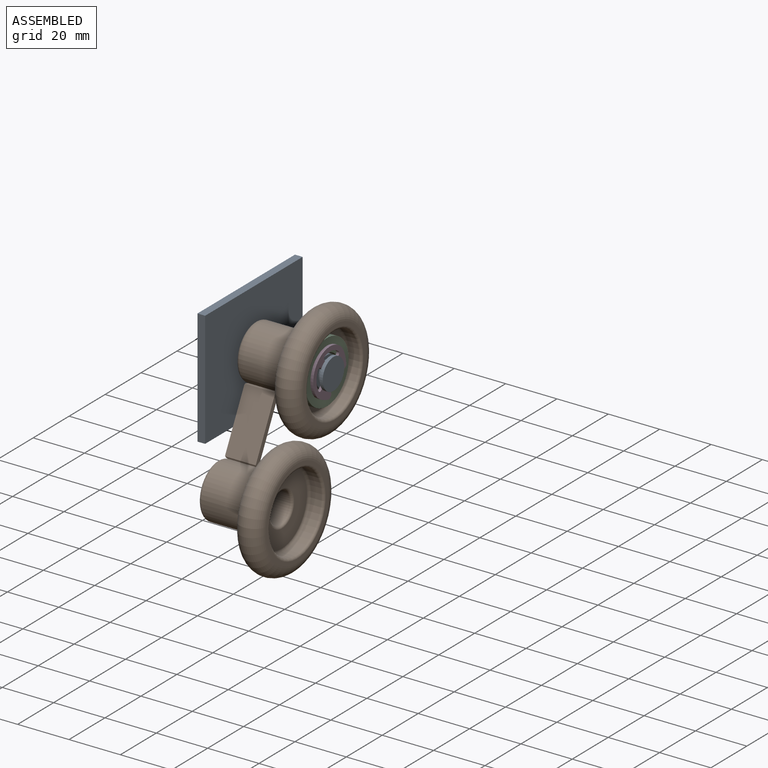
[diagram: assembled view]
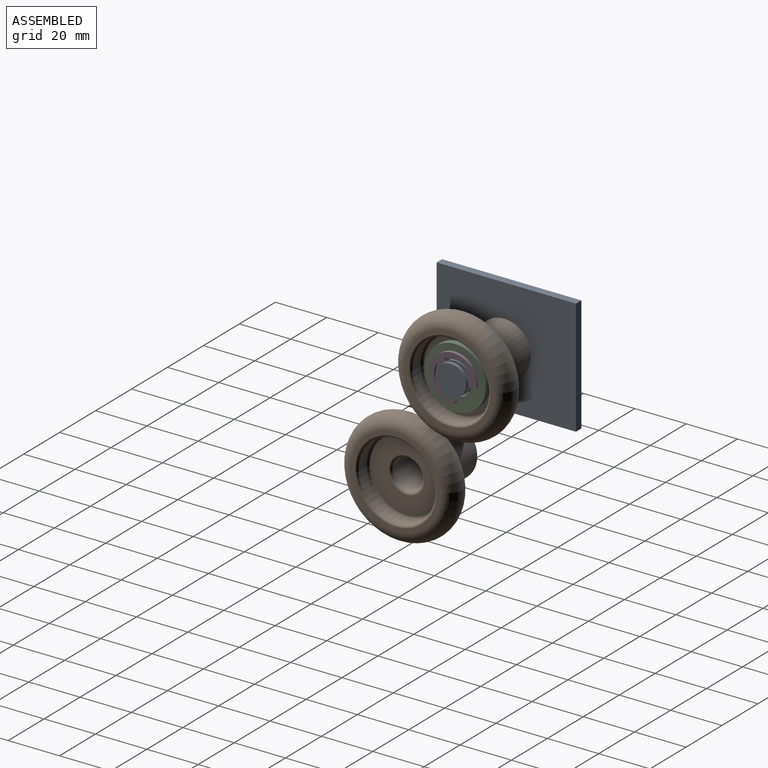
[diagram: assembled view, second angle]
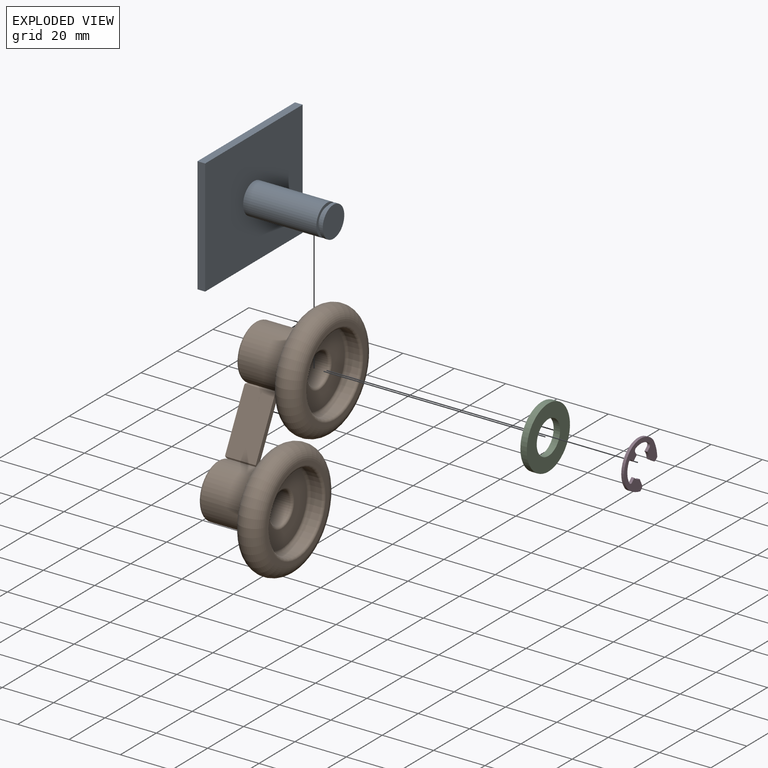
[diagram: exploded view]
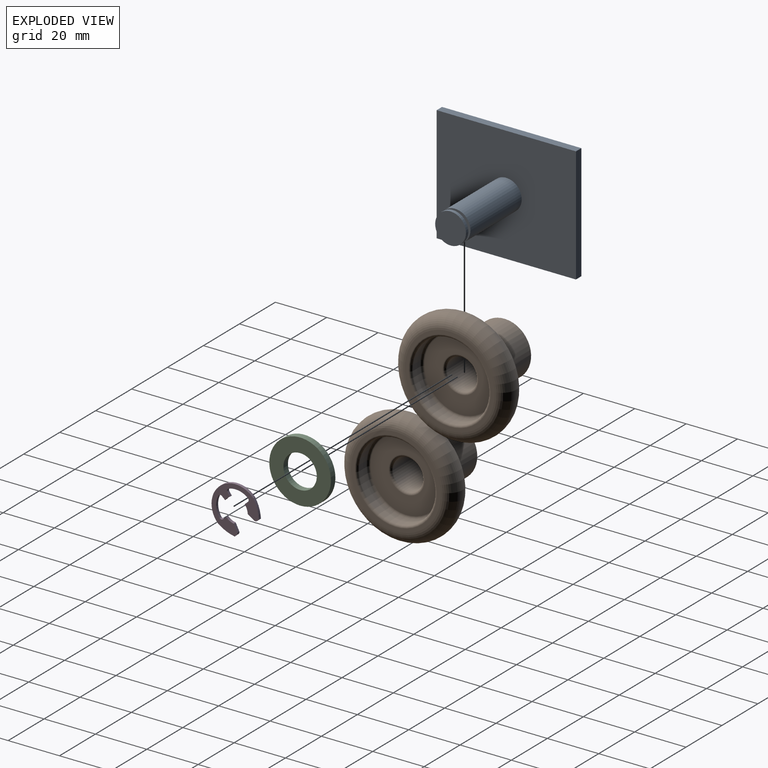
[diagram: exploded view, second angle]
ASSEMBLY  parts=4 mates=3
PART A: 12 faces, bbox 34x54.3x45.1 mm
  f0: cylinder r=6mm len=28.5mm, axis (-1,0,0), area 1074.4mm2, adj f6,f9
  f1: plane 45.1x3mm, normal (0,1,0), area 135.3mm2, adj f2,f4,f5,f6
  f2: plane 54.25x3mm, normal (0,0,-1), area 162.8mm2, adj f1,f3,f5,f6
  f3: plane 45.1x3mm, normal (0,-1,0), area 135.3mm2, adj f2,f4,f5,f6
  f4: plane 54.25x3mm, normal (0,0,1), area 162.8mm2, adj f1,f3,f5,f6
  f5: plane 54.25x45.1mm, normal (-1,0,0), area 2446.8mm2, adj f1,f2,f3,f4
  f6: plane 54.25x45.1mm, normal (1,0,0), area 2333.7mm2, adj f0,f1,f2,f3,f4
  f7: cylinder r=4.8mm len=9.6mm, axis (-1,0,0), area 36.2mm2, adj f8,f9
  f8: plane 12x12mm, normal (-1,0,0), area 40.7mm2, adj f7,f11
  f9: plane 12x12mm, normal (1,0,0), area 40.7mm2, adj f0,f7
  f10: plane 12x12mm, normal (1,0,0), area 113.1mm2, adj f11
  f11: cylinder r=6mm len=12mm, axis (-1,0,0), area 49mm2, adj f8,f10
PART B: 324 faces, bbox 31x48.7x94.7 mm
  f0: cylinder r=10.5mm len=21mm, axis (-1,0,0), area 1126.6mm2, adj f32,f37,f38,f39,f40,f41,f42,f43
  f1: plane 19x19mm, normal (-1,0,0), area 129.6mm2, adj f32,f33
  f2: cylinder r=6mm len=23mm, axis (-1,0,0), area 867.1mm2, adj f33,f34
  f3: plane 28x28mm, normal (1,0,0), area 461.8mm2, adj f34,f35
  f4: cylinder r=15mm len=30mm, axis (-1,0,0), area 377mm2, adj f35,f36
  f5: plane 35x35mm, normal (1,0,0), area 157.9mm2, adj f6,f36
  f6: torus R=17.5mm, axis (-1,0,0), area 2041.3mm2, adj f5,f7
  f7: plane 35x35mm, normal (-1,0,0), area 360.7mm2, adj f6,f37,f38,f39,f40,f41,f42,f43
  f8: plane 3.87x2.38mm, normal (0,-1,0), area 4.1mm2, adj f150,f154,f155,f156
  f9: plane 3.87x2.38mm, normal (0,1,0), area 4.1mm2, adj f143,f144,f145,f146
  f10: plane 5.67x3.49mm, normal (-0.85,0,0.52), area 10mm2, adj f145,f149,f150,f151
  f11: plane 2.74x2.74mm, normal (0,-0.71,0.71), area 4.1mm2, adj f136,f140,f141,f142
  f12: plane 2.74x2.74mm, normal (0,0.71,-0.71), area 4.1mm2, adj f129,f130,f131,f132
  f13: plane 5.07x5.07mm, normal (-0.85,0.37,0.37), area 10mm2, adj f131,f135,f136,f137
  f14: plane 3.87x2.38mm, normal (0,0,1), area 4.1mm2, adj f122,f126,f127,f128
  f15: plane 3.87x2.38mm, normal (0,0,-1), area 4.1mm2, adj f115,f116,f117,f118
  f16: plane 5.67x3.49mm, normal (-0.85,0.52,0), area 10mm2, adj f117,f121,f122,f123
  f17: plane 2.74x2.74mm, normal (0,0.71,0.71), area 4.1mm2, adj f108,f112,f113,f114
  f18: plane 2.74x2.74mm, normal (0,-0.71,-0.71), area 4.1mm2, adj f101,f102,f103,f104
  f19: plane 5.07x5.07mm, normal (-0.85,0.37,-0.37), area 10mm2, adj f103,f107,f108,f109
  f20: plane 3.87x2.38mm, normal (0,1,0), area 4.1mm2, adj f94,f98,f99,f100
  f21: plane 3.87x2.38mm, normal (0,-1,0), area 4.1mm2, adj f87,f88,f89,f90
  f22: plane 5.67x3.49mm, normal (-0.85,0,-0.52), area 10mm2, adj f89,f93,f94,f95
  f23: plane 2.74x2.74mm, normal (0,0.71,-0.71), area 4.1mm2, adj f80,f84,f85,f86
  f24: plane 2.74x2.74mm, normal (0,-0.71,0.71), area 4.1mm2, adj f73,f74,f75,f76
  f25: plane 5.07x5.07mm, normal (-0.85,-0.37,-0.37), area 10mm2, adj f75,f79,f80,f81
  f26: plane 3.87x2.38mm, normal (0,0,-1), area 4.1mm2, adj f66,f70,f71,f72
  f27: plane 3.87x2.38mm, normal (0,0,1), area 4.1mm2, adj f59,f60,f61,f62
  f28: plane 5.67x3.49mm, normal (-0.85,-0.52,0), area 10mm2, adj f61,f65,f66,f67
  f29: plane 2.74x2.74mm, normal (0,-0.71,-0.71), area 4.1mm2, adj f52,f56,f57,f58
  f30: plane 2.74x2.74mm, normal (0,0.71,0.71), area 4.1mm2, adj f45,f46,f47,f48
  f31: plane 5.07x5.07mm, normal (-0.85,-0.37,0.37), area 10mm2, adj f47,f51,f52,f53
  f32: torus R=9.5mm, axis (1,0,0), area 100mm2, adj f0,f1,f322
  f33: torus R=7mm, axis (1,0,0), area 62.8mm2, adj f1,f2
  f34: torus R=7mm, axis (-1,0,0), area 62.8mm2, adj f2,f3
  f35: torus R=14mm, axis (-1,0,0), area 144.5mm2, adj f3,f4
  f36: torus R=16mm, axis (-1,0,0), area 151.6mm2, adj f4,f5
  f37: torus R=12.5mm, axis (1,0,0), area 17.1mm2, adj f0,f7,f45,f156
  f38: torus R=12.5mm, axis (1,0,0), area 17.1mm2, adj f0,f7,f58,f59
  f39: torus R=12.5mm, axis (1,0,0), area 17.1mm2, adj f0,f7,f72,f73
  f40: torus R=12.5mm, axis (1,0,0), area 17.1mm2, adj f0,f7,f86,f87
  f41: torus R=12.5mm, axis (1,0,0), area 17.1mm2, adj f0,f7,f100,f101
  f42: torus R=12.5mm, axis (1,0,0), area 17.1mm2, adj f0,f7,f114,f115
  f43: torus R=12.5mm, axis (1,0,0), area 17.1mm2, adj f0,f7,f128,f129
  f44: torus R=12.5mm, axis (1,0,0), area 17.1mm2, adj f0,f7,f142,f143
  f45: bspline ~2.45x2.06mm, area 2.1mm2, adj f30,f37,f46,f48
  f46: cylinder r=0.5mm len=0.88mm, axis (-1,0,0), area 0.6mm2, adj f0,f30,f45,f49
  f47: cylinder r=0.5mm len=4.55mm, axis (-0.52,0.6,-0.6), area 4.6mm2, adj f30,f31,f49,f50
  f48: cylinder r=0.5mm len=2.02mm, axis (0,0.71,-0.71), area 1.9mm2, adj f7,f30,f45,f50
  f49: bspline ~1.33x0.98mm, area 0.7mm2, adj f0,f46,f47,f51
  f50: bspline ~2.31x1.43mm, area 1.1mm2, adj f7,f47,f48,f53
  f51: bspline ~1.2x1.2mm, area 0.7mm2, adj f0,f31,f49,f54
  f52: cylinder r=0.5mm len=4.55mm, axis (0.52,-0.6,0.6), area 4.6mm2, adj f29,f31,f54,f55
  f53: cylinder r=0.5mm len=1.25mm, axis (0,-0.71,-0.71), area 0.4mm2, adj f7,f31,f50,f55
  f54: bspline ~1.44x0.93mm, area 0.7mm2, adj f0,f51,f52,f56
  f55: bspline ~2.06x1.17mm, area 1.1mm2, adj f7,f52,f53,f57
  f56: cylinder r=0.5mm len=0.88mm, axis (-1,0,0), area 0.6mm2, adj f0,f29,f54,f58
  f57: cylinder r=0.5mm len=2.02mm, axis (0,-0.71,0.71), area 1.9mm2, adj f7,f29,f55,f58
  f58: bspline ~2.45x2.06mm, area 2.1mm2, adj f29,f38,f56,f57
  f59: bspline ~2.45x2.13mm, area 2.1mm2, adj f27,f38,f60,f62
  f60: cylinder r=0.5mm len=0.88mm, axis (-1,0,0), area 0.6mm2, adj f0,f27,f59,f63
  f61: cylinder r=0.5mm len=5.93mm, axis (-0.52,0.85,0), area 4.6mm2, adj f27,f28,f63,f64
  f62: cylinder r=0.5mm len=2.36mm, axis (0,1,0), area 1.9mm2, adj f7,f27,f59,f64
  f63: bspline ~1.33x1.15mm, area 0.7mm2, adj f0,f60,f61,f65
  f64: bspline ~2.24x1.04mm, area 1.1mm2, adj f7,f61,f62,f67
  f65: bspline ~1.5x0.44mm, area 0.7mm2, adj f0,f28,f63,f68
  f66: cylinder r=0.5mm len=5.93mm, axis (0.52,-0.85,0), area 4.6mm2, adj f26,f28,f68,f69
  f67: cylinder r=0.5mm len=1.5mm, axis (0,0,-1), area 0.4mm2, adj f7,f28,f64,f69
  f68: bspline ~1.44x1.03mm, area 0.7mm2, adj f0,f65,f66,f70
  f69: bspline ~2.24x1mm, area 1.1mm2, adj f7,f66,f67,f71
  f70: cylinder r=0.5mm len=0.88mm, axis (-1,0,0), area 0.6mm2, adj f0,f26,f68,f72
  f71: cylinder r=0.5mm len=2.36mm, axis (0,-1,0), area 1.9mm2, adj f7,f26,f69,f72
  f72: bspline ~2.47x2.45mm, area 2.1mm2, adj f26,f39,f70,f71
  f73: bspline ~2.45x2.06mm, area 2.1mm2, adj f24,f39,f74,f76
  f74: cylinder r=0.5mm len=0.88mm, axis (-1,0,0), area 0.6mm2, adj f0,f24,f73,f77
  f75: cylinder r=0.5mm len=4.55mm, axis (-0.52,0.6,0.6), area 4.6mm2, adj f24,f25,f77,f78
  f76: cylinder r=0.5mm len=2.02mm, axis (0,0.71,0.71), area 1.9mm2, adj f7,f24,f73,f78
  f77: bspline ~1.33x0.98mm, area 0.7mm2, adj f0,f74,f75,f79
  f78: bspline ~2.31x1.43mm, area 1.1mm2, adj f7,f75,f76,f81
  f79: bspline ~1.2x1.2mm, area 0.7mm2, adj f0,f25,f77,f82
  f80: cylinder r=0.5mm len=4.55mm, axis (0.52,-0.6,-0.6), area 4.6mm2, adj f23,f25,f82,f83
  f81: cylinder r=0.5mm len=1.25mm, axis (0,0.71,-0.71), area 0.4mm2, adj f7,f25,f78,f83
  f82: bspline ~1.44x0.93mm, area 0.7mm2, adj f0,f79,f80,f84
  f83: bspline ~2.06x1.17mm, area 1.1mm2, adj f7,f80,f81,f85
  f84: cylinder r=0.5mm len=0.88mm, axis (-1,0,0), area 0.6mm2, adj f0,f23,f82,f86
  f85: cylinder r=0.5mm len=2.02mm, axis (0,-0.71,-0.71), area 1.9mm2, adj f7,f23,f83,f86
  f86: bspline ~2.45x2.06mm, area 2.1mm2, adj f23,f40,f84,f85
  f87: bspline ~2.45x2.13mm, area 2.1mm2, adj f21,f40,f88,f90
  f88: cylinder r=0.5mm len=0.88mm, axis (-1,0,0), area 0.6mm2, adj f0,f21,f87,f91
  f89: cylinder r=0.5mm len=5.93mm, axis (-0.52,0,0.85), area 4.6mm2, adj f21,f22,f91,f92
  f90: cylinder r=0.5mm len=2.36mm, axis (0,0,1), area 1.9mm2, adj f7,f21,f87,f92
  f91: bspline ~1.33x1.15mm, area 0.7mm2, adj f0,f88,f89,f93
  f92: bspline ~2.24x1.04mm, area 1.1mm2, adj f7,f89,f90,f95
  f93: bspline ~1.5x0.44mm, area 0.7mm2, adj f0,f22,f91,f96
  f94: cylinder r=0.5mm len=5.93mm, axis (0.52,0,-0.85), area 4.6mm2, adj f20,f22,f96,f97
  f95: cylinder r=0.5mm len=1.5mm, axis (0,1,0), area 0.4mm2, adj f7,f22,f92,f97
  f96: bspline ~1.44x1.03mm, area 0.7mm2, adj f0,f93,f94,f98
  f97: bspline ~2.24x1mm, area 1.1mm2, adj f7,f94,f95,f99
  f98: cylinder r=0.5mm len=0.88mm, axis (-1,0,0), area 0.6mm2, adj f0,f20,f96,f100
  f99: cylinder r=0.5mm len=2.36mm, axis (0,0,-1), area 1.9mm2, adj f7,f20,f97,f100
  f100: bspline ~2.47x2.45mm, area 2.1mm2, adj f20,f41,f98,f99
  f101: bspline ~2.45x2.06mm, area 2.1mm2, adj f18,f41,f102,f104
  f102: cylinder r=0.5mm len=0.88mm, axis (-1,0,0), area 0.6mm2, adj f0,f18,f101,f105
  f103: cylinder r=0.5mm len=4.55mm, axis (-0.52,-0.6,0.6), area 4.6mm2, adj f18,f19,f105,f106
  f104: cylinder r=0.5mm len=2.02mm, axis (0,-0.71,0.71), area 1.9mm2, adj f7,f18,f101,f106
  f105: bspline ~1.33x0.98mm, area 0.7mm2, adj f0,f102,f103,f107
  f106: bspline ~2.31x1.43mm, area 1.1mm2, adj f7,f103,f104,f109
  f107: bspline ~1.2x1.2mm, area 0.7mm2, adj f0,f19,f105,f110
  f108: cylinder r=0.5mm len=4.55mm, axis (0.52,0.6,-0.6), area 4.6mm2, adj f17,f19,f110,f111
  f109: cylinder r=0.5mm len=1.25mm, axis (0,0.71,0.71), area 0.4mm2, adj f7,f19,f106,f111
  f110: bspline ~1.44x0.93mm, area 0.7mm2, adj f0,f107,f108,f112
  f111: bspline ~2.06x1.17mm, area 1.1mm2, adj f7,f108,f109,f113
  f112: cylinder r=0.5mm len=0.88mm, axis (-1,0,0), area 0.6mm2, adj f0,f17,f110,f114
  f113: cylinder r=0.5mm len=2.02mm, axis (0,0.71,-0.71), area 1.9mm2, adj f7,f17,f111,f114
  f114: bspline ~2.45x2.06mm, area 2.1mm2, adj f17,f42,f112,f113
  f115: bspline ~2.45x2.13mm, area 2.1mm2, adj f15,f42,f116,f118
  f116: cylinder r=0.5mm len=0.88mm, axis (-1,0,0), area 0.6mm2, adj f0,f15,f115,f119
  f117: cylinder r=0.5mm len=5.93mm, axis (-0.52,-0.85,0), area 4.6mm2, adj f15,f16,f119,f120
  f118: cylinder r=0.5mm len=2.36mm, axis (0,-1,0), area 1.9mm2, adj f7,f15,f115,f120
  f119: bspline ~1.33x1.15mm, area 0.7mm2, adj f0,f116,f117,f121
  f120: bspline ~2.24x1.04mm, area 1.1mm2, adj f7,f117,f118,f123
  f121: bspline ~1.5x0.44mm, area 0.7mm2, adj f0,f16,f119,f124
  f122: cylinder r=0.5mm len=5.93mm, axis (0.52,0.85,0), area 4.6mm2, adj f14,f16,f124,f125
  f123: cylinder r=0.5mm len=1.5mm, axis (0,0,1), area 0.4mm2, adj f7,f16,f120,f125
  f124: bspline ~1.44x1.03mm, area 0.7mm2, adj f0,f121,f122,f126
  f125: bspline ~2.24x1mm, area 1.1mm2, adj f7,f122,f123,f127
  f126: cylinder r=0.5mm len=0.88mm, axis (-1,0,0), area 0.6mm2, adj f0,f14,f124,f128
  f127: cylinder r=0.5mm len=2.36mm, axis (0,1,0), area 1.9mm2, adj f7,f14,f125,f128
  f128: bspline ~2.47x2.45mm, area 2.1mm2, adj f14,f43,f126,f127
  f129: bspline ~2.45x2.06mm, area 2.1mm2, adj f12,f43,f130,f132
  f130: cylinder r=0.5mm len=0.88mm, axis (-1,0,0), area 0.6mm2, adj f0,f12,f129,f133
  f131: cylinder r=0.5mm len=4.55mm, axis (-0.52,-0.6,-0.6), area 4.6mm2, adj f12,f13,f133,f134
  f132: cylinder r=0.5mm len=2.02mm, axis (0,-0.71,-0.71), area 1.9mm2, adj f7,f12,f129,f134
  f133: bspline ~1.33x0.98mm, area 0.7mm2, adj f0,f130,f131,f135
  f134: bspline ~2.31x1.43mm, area 1.1mm2, adj f7,f131,f132,f137
  f135: bspline ~1.2x1.2mm, area 0.7mm2, adj f0,f13,f133,f138
  f136: cylinder r=0.5mm len=4.55mm, axis (0.52,0.6,0.6), area 4.6mm2, adj f11,f13,f138,f139
  f137: cylinder r=0.5mm len=1.25mm, axis (0,-0.71,0.71), area 0.4mm2, adj f7,f13,f134,f139
  f138: bspline ~1.44x0.93mm, area 0.7mm2, adj f0,f135,f136,f140
  f139: bspline ~2.06x1.17mm, area 1.1mm2, adj f7,f136,f137,f141
  f140: cylinder r=0.5mm len=0.88mm, axis (-1,0,0), area 0.6mm2, adj f0,f11,f138,f142
  f141: cylinder r=0.5mm len=2.02mm, axis (0,0.71,0.71), area 1.9mm2, adj f7,f11,f139,f142
  f142: bspline ~2.45x2.06mm, area 2.1mm2, adj f11,f44,f140,f141
  f143: bspline ~2.45x2.13mm, area 2.1mm2, adj f9,f44,f144,f146
  f144: cylinder r=0.5mm len=0.88mm, axis (-1,0,0), area 0.6mm2, adj f0,f9,f143,f147
  f145: cylinder r=0.5mm len=5.93mm, axis (-0.52,0,-0.85), area 4.6mm2, adj f9,f10,f147,f148
  f146: cylinder r=0.5mm len=2.36mm, axis (0,0,-1), area 1.9mm2, adj f7,f9,f143,f148
  f147: bspline ~1.33x1.15mm, area 0.7mm2, adj f0,f144,f145,f149
  f148: bspline ~2.24x1.04mm, area 1.1mm2, adj f7,f145,f146,f151
  f149: bspline ~1.5x0.44mm, area 0.7mm2, adj f0,f10,f147,f152
  f150: cylinder r=0.5mm len=5.93mm, axis (0.52,0,0.85), area 4.6mm2, adj f8,f10,f152,f153
  f151: cylinder r=0.5mm len=1.5mm, axis (0,-1,0), area 0.4mm2, adj f7,f10,f148,f153
  f152: bspline ~1.44x1.03mm, area 0.7mm2, adj f0,f149,f150,f154
  f153: bspline ~2.24x1mm, area 1.1mm2, adj f7,f150,f151,f155
  f154: cylinder r=0.5mm len=0.88mm, axis (-1,0,0), area 0.6mm2, adj f0,f8,f152,f156
  f155: cylinder r=0.5mm len=2.36mm, axis (0,0,1), area 1.9mm2, adj f7,f8,f153,f156
  f156: bspline ~2.47x2.45mm, area 2.1mm2, adj f8,f37,f154,f155
  f157: cylinder r=10.5mm len=21mm, axis (-1,0,0), area 1126.6mm2, adj f189,f194,f195,f196,f197,f198,f199,f200
  f158: plane 19x19mm, normal (-1,0,0), area 129.6mm2, adj f189,f190
  f159: cylinder r=6mm len=23mm, axis (-1,0,0), area 867.1mm2, adj f190,f191
  f160: plane 28x28mm, normal (1,0,0), area 461.8mm2, adj f191,f192
  f161: cylinder r=15mm len=30mm, axis (-1,0,0), area 377mm2, adj f192,f193
  f162: plane 35x35mm, normal (1,0,0), area 157.9mm2, adj f163,f193
  f163: torus R=17.5mm, axis (-1,0,0), area 2041.3mm2, adj f162,f164
  f164: plane 35x35mm, normal (-1,0,0), area 360.7mm2, adj f163,f194,f195,f196,f197,f198,f199,f200
  f165: plane 3.87x2.38mm, normal (0,-1,0), area 4.1mm2, adj f307,f311,f312,f313
  f166: plane 3.87x2.38mm, normal (0,1,0), area 4.1mm2, adj f300,f301,f302,f303
  f167: plane 5.67x3.49mm, normal (-0.85,0,-0.52), area 10mm2, adj f302,f306,f307,f308
  f168: plane 2.74x2.74mm, normal (0,-0.71,-0.71), area 4.1mm2, adj f293,f297,f298,f299
  f169: plane 2.74x2.74mm, normal (0,0.71,0.71), area 4.1mm2, adj f286,f287,f288,f289
  f170: plane 5.07x5.07mm, normal (-0.85,0.37,-0.37), area 10mm2, adj f288,f292,f293,f294
  f171: plane 3.87x2.38mm, normal (0,0,-1), area 4.1mm2, adj f279,f283,f284,f285
  f172: plane 3.87x2.38mm, normal (0,0,1), area 4.1mm2, adj f272,f273,f274,f275
  f173: plane 5.67x3.49mm, normal (-0.85,0.52,0), area 10mm2, adj f274,f278,f279,f280
  f174: plane 2.74x2.74mm, normal (0,0.71,-0.71), area 4.1mm2, adj f265,f269,f270,f271
  f175: plane 2.74x2.74mm, normal (0,-0.71,0.71), area 4.1mm2, adj f258,f259,f260,f261
  f176: plane 5.07x5.07mm, normal (-0.85,0.37,0.37), area 10mm2, adj f260,f264,f265,f266
  f177: plane 3.87x2.38mm, normal (0,1,0), area 4.1mm2, adj f251,f255,f256,f257
  f178: plane 3.87x2.38mm, normal (0,-1,0), area 4.1mm2, adj f244,f245,f246,f247
  f179: plane 5.67x3.49mm, normal (-0.85,0,0.52), area 10mm2, adj f246,f250,f251,f252
  f180: plane 2.74x2.74mm, normal (0,0.71,0.71), area 4.1mm2, adj f237,f241,f242,f243
  f181: plane 2.74x2.74mm, normal (0,-0.71,-0.71), area 4.1mm2, adj f230,f231,f232,f233
  f182: plane 5.07x5.07mm, normal (-0.85,-0.37,0.37), area 10mm2, adj f232,f236,f237,f238
  f183: plane 3.87x2.38mm, normal (0,0,1), area 4.1mm2, adj f223,f227,f228,f229
  f184: plane 3.87x2.38mm, normal (0,0,-1), area 4.1mm2, adj f216,f217,f218,f219
  f185: plane 5.67x3.49mm, normal (-0.85,-0.52,0), area 10mm2, adj f218,f222,f223,f224
  f186: plane 2.74x2.74mm, normal (0,-0.71,0.71), area 4.1mm2, adj f209,f213,f214,f215
  f187: plane 2.74x2.74mm, normal (0,0.71,-0.71), area 4.1mm2, adj f202,f203,f204,f205
  f188: plane 5.07x5.07mm, normal (-0.85,-0.37,-0.37), area 10mm2, adj f204,f208,f209,f210
  f189: torus R=9.5mm, axis (1,0,0), area 100mm2, adj f157,f158,f323
  f190: torus R=7mm, axis (1,0,0), area 62.8mm2, adj f158,f159
  f191: torus R=7mm, axis (-1,0,0), area 62.8mm2, adj f159,f160
  f192: torus R=14mm, axis (-1,0,0), area 144.5mm2, adj f160,f161
  f193: torus R=16mm, axis (-1,0,0), area 151.6mm2, adj f161,f162
  f194: torus R=12.5mm, axis (1,0,0), area 17.1mm2, adj f157,f164,f202,f313
  f195: torus R=12.5mm, axis (1,0,0), area 17.1mm2, adj f157,f164,f215,f216
  f196: torus R=12.5mm, axis (1,0,0), area 17.1mm2, adj f157,f164,f229,f230
  f197: torus R=12.5mm, axis (1,0,0), area 17.1mm2, adj f157,f164,f243,f244
  f198: torus R=12.5mm, axis (1,0,0), area 17.1mm2, adj f157,f164,f257,f258
  f199: torus R=12.5mm, axis (1,0,0), area 17.1mm2, adj f157,f164,f271,f272
  f200: torus R=12.5mm, axis (1,0,0), area 17.1mm2, adj f157,f164,f285,f286
  f201: torus R=12.5mm, axis (1,0,0), area 17.1mm2, adj f157,f164,f299,f300
  f202: bspline ~2.45x2.06mm, area 2.1mm2, adj f187,f194,f203,f205
  f203: cylinder r=0.5mm len=0.88mm, axis (-1,0,0), area 0.6mm2, adj f157,f187,f202,f206
  f204: cylinder r=0.5mm len=4.55mm, axis (-0.52,0.6,0.6), area 4.6mm2, adj f187,f188,f206,f207
  f205: cylinder r=0.5mm len=2.02mm, axis (0,0.71,0.71), area 1.9mm2, adj f164,f187,f202,f207
  f206: bspline ~1.33x0.98mm, area 0.7mm2, adj f157,f203,f204,f208
  f207: bspline ~2.31x1.43mm, area 1.1mm2, adj f164,f204,f205,f210
  f208: bspline ~1.2x1.2mm, area 0.7mm2, adj f157,f188,f206,f211
  f209: cylinder r=0.5mm len=4.55mm, axis (0.52,-0.6,-0.6), area 4.6mm2, adj f186,f188,f211,f212
  f210: cylinder r=0.5mm len=1.25mm, axis (0,-0.71,0.71), area 0.4mm2, adj f164,f188,f207,f212
  f211: bspline ~1.44x0.93mm, area 0.7mm2, adj f157,f208,f209,f213
  f212: bspline ~2.28x1.43mm, area 1.1mm2, adj f164,f209,f210,f214
  f213: cylinder r=0.5mm len=0.88mm, axis (-1,0,0), area 0.6mm2, adj f157,f186,f211,f215
  f214: cylinder r=0.5mm len=2.02mm, axis (0,-0.71,-0.71), area 1.9mm2, adj f164,f186,f212,f215
  f215: bspline ~2.45x2.06mm, area 2.1mm2, adj f186,f195,f213,f214
  f216: bspline ~2.47x2.45mm, area 2.1mm2, adj f184,f195,f217,f219
  f217: cylinder r=0.5mm len=0.88mm, axis (-1,0,0), area 0.6mm2, adj f157,f184,f216,f220
  f218: cylinder r=0.5mm len=5.93mm, axis (-0.52,0.85,0), area 4.6mm2, adj f184,f185,f220,f221
  f219: cylinder r=0.5mm len=2.36mm, axis (0,1,0), area 1.9mm2, adj f164,f184,f216,f221
  f220: bspline ~1.33x1.15mm, area 0.7mm2, adj f157,f217,f218,f222
  f221: bspline ~2.24x1.04mm, area 1.1mm2, adj f164,f218,f219,f224
  f222: bspline ~1.5x0.44mm, area 0.7mm2, adj f157,f185,f220,f225
  f223: cylinder r=0.5mm len=5.93mm, axis (0.52,-0.85,0), area 4.6mm2, adj f183,f185,f225,f226
  f224: cylinder r=0.5mm len=1.5mm, axis (0,0,1), area 0.4mm2, adj f164,f185,f221,f226
  f225: bspline ~1.44x1.03mm, area 0.7mm2, adj f157,f222,f223,f227
  f226: bspline ~2.24x1mm, area 1.1mm2, adj f164,f223,f224,f228
  f227: cylinder r=0.5mm len=0.88mm, axis (-1,0,0), area 0.6mm2, adj f157,f183,f225,f229
  f228: cylinder r=0.5mm len=2.36mm, axis (0,-1,0), area 1.9mm2, adj f164,f183,f226,f229
  f229: bspline ~2.47x2.45mm, area 2.1mm2, adj f183,f196,f227,f228
  f230: bspline ~2.45x2.06mm, area 2.1mm2, adj f181,f196,f231,f233
  f231: cylinder r=0.5mm len=0.88mm, axis (-1,0,0), area 0.6mm2, adj f157,f181,f230,f234
  f232: cylinder r=0.5mm len=4.55mm, axis (-0.52,0.6,-0.6), area 4.6mm2, adj f181,f182,f234,f235
  f233: cylinder r=0.5mm len=2.02mm, axis (0,0.71,-0.71), area 1.9mm2, adj f164,f181,f230,f235
  f234: bspline ~1.33x0.98mm, area 0.7mm2, adj f157,f231,f232,f236
  f235: bspline ~2.31x1.43mm, area 1.1mm2, adj f164,f232,f233,f238
  f236: bspline ~1.2x1.2mm, area 0.7mm2, adj f157,f182,f234,f239
  f237: cylinder r=0.5mm len=4.55mm, axis (0.52,-0.6,0.6), area 4.6mm2, adj f180,f182,f239,f240
  f238: cylinder r=0.5mm len=1.25mm, axis (0,0.71,0.71), area 0.4mm2, adj f164,f182,f235,f240
  f239: bspline ~1.44x0.93mm, area 0.7mm2, adj f157,f236,f237,f241
  f240: bspline ~2.28x1.43mm, area 1.1mm2, adj f164,f237,f238,f242
  f241: cylinder r=0.5mm len=0.88mm, axis (-1,0,0), area 0.6mm2, adj f157,f180,f239,f243
  f242: cylinder r=0.5mm len=2.02mm, axis (0,-0.71,0.71), area 1.9mm2, adj f164,f180,f240,f243
  f243: bspline ~2.45x2.06mm, area 2.1mm2, adj f180,f197,f241,f242
  f244: bspline ~2.45x2.13mm, area 2.1mm2, adj f178,f197,f245,f247
  f245: cylinder r=0.5mm len=0.88mm, axis (-1,0,0), area 0.6mm2, adj f157,f178,f244,f248
  f246: cylinder r=0.5mm len=5.93mm, axis (-0.52,0,-0.85), area 4.6mm2, adj f178,f179,f248,f249
  f247: cylinder r=0.5mm len=2.36mm, axis (0,0,-1), area 1.9mm2, adj f164,f178,f244,f249
  f248: bspline ~1.33x1.15mm, area 0.7mm2, adj f157,f245,f246,f250
  f249: bspline ~2.24x1.04mm, area 1.1mm2, adj f164,f246,f247,f252
  f250: bspline ~1.5x0.44mm, area 0.7mm2, adj f157,f179,f248,f253
  f251: cylinder r=0.5mm len=5.93mm, axis (0.52,0,0.85), area 4.6mm2, adj f177,f179,f253,f254
  f252: cylinder r=0.5mm len=1.5mm, axis (0,1,0), area 0.4mm2, adj f164,f179,f249,f254
  f253: bspline ~1.44x1.03mm, area 0.7mm2, adj f157,f250,f251,f255
  f254: bspline ~2.24x1mm, area 1.1mm2, adj f164,f251,f252,f256
  f255: cylinder r=0.5mm len=0.88mm, axis (-1,0,0), area 0.6mm2, adj f157,f177,f253,f257
  f256: cylinder r=0.5mm len=2.36mm, axis (0,0,1), area 1.9mm2, adj f164,f177,f254,f257
  f257: bspline ~2.45x2.13mm, area 2.1mm2, adj f177,f198,f255,f256
  f258: bspline ~2.45x2.06mm, area 2.1mm2, adj f175,f198,f259,f261
  f259: cylinder r=0.5mm len=0.88mm, axis (-1,0,0), area 0.6mm2, adj f157,f175,f258,f262
  f260: cylinder r=0.5mm len=4.55mm, axis (-0.52,-0.6,-0.6), area 4.6mm2, adj f175,f176,f262,f263
  f261: cylinder r=0.5mm len=2.02mm, axis (0,-0.71,-0.71), area 1.9mm2, adj f164,f175,f258,f263
  f262: bspline ~1.33x0.98mm, area 0.7mm2, adj f157,f259,f260,f264
  f263: bspline ~2.31x1.43mm, area 1.1mm2, adj f164,f260,f261,f266
  f264: bspline ~1.2x1.2mm, area 0.7mm2, adj f157,f176,f262,f267
  f265: cylinder r=0.5mm len=4.55mm, axis (0.52,0.6,0.6), area 4.6mm2, adj f174,f176,f267,f268
  f266: cylinder r=0.5mm len=1.25mm, axis (0,0.71,-0.71), area 0.4mm2, adj f164,f176,f263,f268
  f267: bspline ~1.44x0.93mm, area 0.7mm2, adj f157,f264,f265,f269
  f268: bspline ~2.28x1.43mm, area 1.1mm2, adj f164,f265,f266,f270
  f269: cylinder r=0.5mm len=0.88mm, axis (-1,0,0), area 0.6mm2, adj f157,f174,f267,f271
  f270: cylinder r=0.5mm len=2.02mm, axis (0,0.71,0.71), area 1.9mm2, adj f164,f174,f268,f271
  f271: bspline ~2.45x2.06mm, area 2.1mm2, adj f174,f199,f269,f270
  f272: bspline ~2.47x2.45mm, area 2.1mm2, adj f172,f199,f273,f275
  f273: cylinder r=0.5mm len=0.88mm, axis (-1,0,0), area 0.6mm2, adj f157,f172,f272,f276
  f274: cylinder r=0.5mm len=5.93mm, axis (-0.52,-0.85,0), area 4.6mm2, adj f172,f173,f276,f277
  f275: cylinder r=0.5mm len=2.36mm, axis (0,-1,0), area 1.9mm2, adj f164,f172,f272,f277
  f276: bspline ~1.33x1.15mm, area 0.7mm2, adj f157,f273,f274,f278
  f277: bspline ~2.24x1.04mm, area 1.1mm2, adj f164,f274,f275,f280
  f278: bspline ~1.5x0.44mm, area 0.7mm2, adj f157,f173,f276,f281
  f279: cylinder r=0.5mm len=5.93mm, axis (0.52,0.85,0), area 4.6mm2, adj f171,f173,f281,f282
  f280: cylinder r=0.5mm len=1.5mm, axis (0,0,-1), area 0.4mm2, adj f164,f173,f277,f282
  f281: bspline ~1.44x1.03mm, area 0.7mm2, adj f157,f278,f279,f283
  f282: bspline ~2.24x1mm, area 1.1mm2, adj f164,f279,f280,f284
  f283: cylinder r=0.5mm len=0.88mm, axis (-1,0,0), area 0.6mm2, adj f157,f171,f281,f285
  f284: cylinder r=0.5mm len=2.36mm, axis (0,1,0), area 1.9mm2, adj f164,f171,f282,f285
  f285: bspline ~2.47x2.45mm, area 2.1mm2, adj f171,f200,f283,f284
  f286: bspline ~2.45x2.06mm, area 2.1mm2, adj f169,f200,f287,f289
  f287: cylinder r=0.5mm len=0.88mm, axis (-1,0,0), area 0.6mm2, adj f157,f169,f286,f290
  f288: cylinder r=0.5mm len=4.55mm, axis (-0.52,-0.6,0.6), area 4.6mm2, adj f169,f170,f290,f291
  f289: cylinder r=0.5mm len=2.02mm, axis (0,-0.71,0.71), area 1.9mm2, adj f164,f169,f286,f291
  f290: bspline ~1.33x0.98mm, area 0.7mm2, adj f157,f287,f288,f292
  f291: bspline ~2.31x1.43mm, area 1.1mm2, adj f164,f288,f289,f294
  f292: bspline ~1.2x1.2mm, area 0.7mm2, adj f157,f170,f290,f295
  f293: cylinder r=0.5mm len=4.55mm, axis (0.52,0.6,-0.6), area 4.6mm2, adj f168,f170,f295,f296
  f294: cylinder r=0.5mm len=1.25mm, axis (0,-0.71,-0.71), area 0.4mm2, adj f164,f170,f291,f296
  f295: bspline ~1.44x0.93mm, area 0.7mm2, adj f157,f292,f293,f297
  f296: bspline ~2.28x1.43mm, area 1.1mm2, adj f164,f293,f294,f298
  f297: cylinder r=0.5mm len=0.88mm, axis (-1,0,0), area 0.6mm2, adj f157,f168,f295,f299
  f298: cylinder r=0.5mm len=2.02mm, axis (0,0.71,-0.71), area 1.9mm2, adj f164,f168,f296,f299
  f299: bspline ~2.45x2.06mm, area 2.1mm2, adj f168,f201,f297,f298
  f300: bspline ~2.47x2.45mm, area 2.1mm2, adj f166,f201,f301,f303
  f301: cylinder r=0.5mm len=0.88mm, axis (-1,0,0), area 0.6mm2, adj f157,f166,f300,f304
  f302: cylinder r=0.5mm len=5.93mm, axis (-0.52,0,0.85), area 4.6mm2, adj f166,f167,f304,f305
  f303: cylinder r=0.5mm len=2.36mm, axis (0,0,1), area 1.9mm2, adj f164,f166,f300,f305
  f304: bspline ~1.33x1.15mm, area 0.7mm2, adj f157,f301,f302,f306
  f305: bspline ~2.24x1.04mm, area 1.1mm2, adj f164,f302,f303,f308
  f306: bspline ~1.5x0.44mm, area 0.7mm2, adj f157,f167,f304,f309
  f307: cylinder r=0.5mm len=5.93mm, axis (0.52,0,-0.85), area 4.6mm2, adj f165,f167,f309,f310
  f308: cylinder r=0.5mm len=1.5mm, axis (0,-1,0), area 0.4mm2, adj f164,f167,f305,f310
  f309: bspline ~1.44x1.03mm, area 0.7mm2, adj f157,f306,f307,f311
  f310: bspline ~2.24x1mm, area 1.1mm2, adj f164,f307,f308,f312
  f311: cylinder r=0.5mm len=0.88mm, axis (-1,0,0), area 0.6mm2, adj f157,f165,f309,f313
  f312: cylinder r=0.5mm len=2.36mm, axis (0,0,-1), area 1.9mm2, adj f164,f165,f310,f313
  f313: bspline ~2.47x2.45mm, area 2.1mm2, adj f165,f194,f311,f312
  f314: plane 11.88x0.5mm, normal (0,0.71,0.71), area 8.2mm2, adj f157,f315,f320,f323
  f315: plane 24.03x12mm, normal (0,1,0), area 288.3mm2, adj f314,f316,f320,f321,f322,f323
  f316: plane 11.88x0.5mm, normal (0,0.71,-0.71), area 8.2mm2, adj f0,f315,f320,f322
  f317: plane 11.88x0.5mm, normal (0,-0.71,-0.71), area 8.2mm2, adj f0,f318,f320,f322
  f318: plane 24.03x12mm, normal (0,-1,0), area 288.3mm2, adj f317,f319,f320,f321,f322,f323
  f319: plane 11.88x0.5mm, normal (0,-0.71,0.71), area 8.2mm2, adj f157,f318,f320,f323
  f320: plane 25.02x2mm, normal (1,0,0), area 49.5mm2, adj f0,f157,f314,f315,f316,f317,f318,f319
  f321: plane 23.09x2mm, normal (-1,0,0), area 46.1mm2, adj f315,f318,f322,f323
  f322: torus R=11.5mm, axis (-1,0,0), area 2.4mm2, adj f32,f315,f316,f317,f318,f321
  f323: torus R=11.5mm, axis (-1,0,0), area 2.4mm2, adj f189,f314,f315,f318,f319,f321
PART C: 4 faces, bbox 24x24x2.5 mm
  f0: cylinder r=12mm len=24mm, axis (0,0,1), area 188.5mm2, adj f2,f3
  f1: cylinder r=6.5mm len=13mm, axis (0,0,1), area 102.1mm2, adj f2,f3
  f2: plane 24x24mm, normal (0,0,-1), area 319.7mm2, adj f0,f1
  f3: plane 24x24mm, normal (0,0,1), area 319.7mm2, adj f0,f1
PART D: 24 faces, bbox 18.6x16x1.1 mm
  f0: cylinder r=0.93mm len=1.1mm, axis (0,0,1), area 1.8mm2, adj f6,f12,f13,f15
  f1: cylinder r=0.93mm len=1.1mm, axis (0,0,-1), area 1.8mm2, adj f2,f5,f6,f15
  f2: plane 1.7x1.1mm, normal (0,1,0), area 1.9mm2, adj f1,f6,f8,f15
  f3: plane 1.71x1.1mm, normal (-0.99,-0.12,0), area 1.9mm2, adj f4,f6,f7,f15
  f4: cylinder r=0.93mm len=1.24mm, axis (0,0,-1), area 1.7mm2, adj f3,f5,f6,f15
  f5: cylinder r=7.5mm len=5.94mm, axis (0,0,-1), area 8.8mm2, adj f1,f4,f6,f15
  f6: plane 18.6x15.97mm, normal (0,0,1), area 107.9mm2, adj f0,f1,f2,f3,f4,f5,f7,f8
  f7: cylinder r=4.8mm len=2.48mm, axis (0,0,1), area 2.8mm2, adj f3,f6,f10,f15
  f8: cylinder r=4.8mm len=3.13mm, axis (0,0,1), area 3.8mm2, adj f2,f6,f15,f21
  f9: cylinder r=4.8mm len=3.13mm, axis (0,0,1), area 3.8mm2, adj f6,f13,f14,f15
  f10: plane 1.71x1.1mm, normal (0.99,-0.12,0), area 1.9mm2, adj f6,f7,f11,f15
  f11: cylinder r=0.93mm len=1.24mm, axis (0,0,1), area 1.7mm2, adj f6,f10,f12,f15
  f12: cylinder r=7.5mm len=5.94mm, axis (0,0,1), area 8.8mm2, adj f0,f6,f11,f15
  f13: plane 1.7x1.1mm, normal (0,1,0), area 1.9mm2, adj f0,f6,f9,f15
  f14: plane 2.73x1.1mm, normal (-0.97,-0.26,0), area 3.1mm2, adj f6,f9,f15,f20
  f15: plane 18.6x15.97mm, normal (0,0,-1), area 107.9mm2, adj f0,f1,f2,f3,f4,f5,f7,f8
  f16: cylinder r=14.88mm len=6.67mm, axis (0,0,1), area 8.1mm2, adj f6,f15,f17,f23
  f17: cylinder r=9.3mm len=18.6mm, axis (0,0,1), area 32.1mm2, adj f6,f15,f16,f18
  f18: cylinder r=14.88mm len=6.67mm, axis (0,0,1), area 8.1mm2, adj f6,f15,f17,f19
  f19: plane 1.1x1.02mm, normal (0,-1,0), area 1.1mm2, adj f6,f15,f18,f20
  f20: cylinder r=0.96mm len=1.1mm, axis (0,0,1), area 1.5mm2, adj f6,f14,f15,f19
  f21: plane 2.73x1.1mm, normal (0.97,-0.26,0), area 3.1mm2, adj f6,f8,f15,f22
  f22: cylinder r=0.96mm len=1.1mm, axis (0,0,1), area 1.5mm2, adj f6,f15,f21,f23
  f23: plane 1.1x1.02mm, normal (0,-1,0), area 1.1mm2, adj f6,f15,f16,f22
PLACE A at identity fixed
PLACE B rot(axis=(1,0,0),152.9deg) t=(0,0,0)mm
PLACE C rot(axis=(0,1,0),90deg) t=(26,0,0)mm
PLACE D rot(axis=(0.67,-0.3,-0.67),146.4deg) t=(29.05,0,0)mm
MATE revolute B.f0 <-> C.f0  axis (1,0,0) through (25.5,0,0)mm
MATE revolute D.f7 <-> A.f0  axis (-1,0,0) through (28.5,0,0)mm
MATE revolute C.f0 <-> A.f0  axis (1,0,0) through (28.5,0,0)mm
